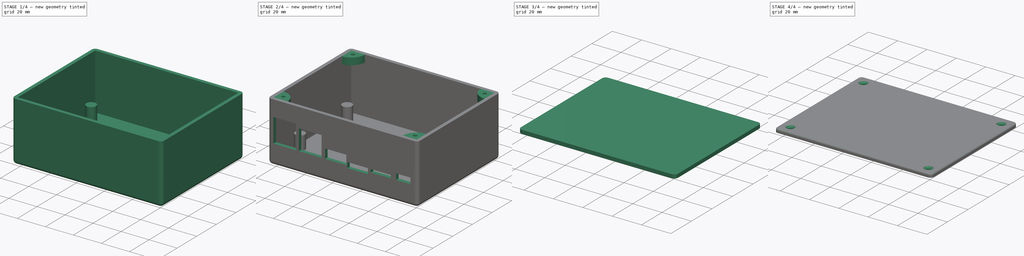
[diagram: build sequence overview — one tinted view per stage of 4, left to right]
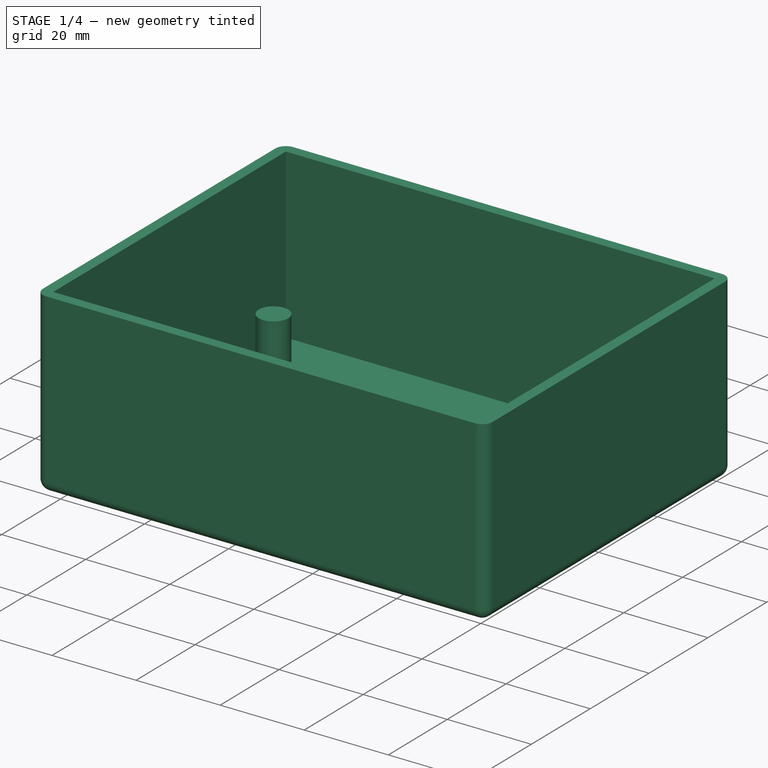
[diagram: stage 1 of 4 — iso view after this stage's code; geometry added in this stage tinted green]
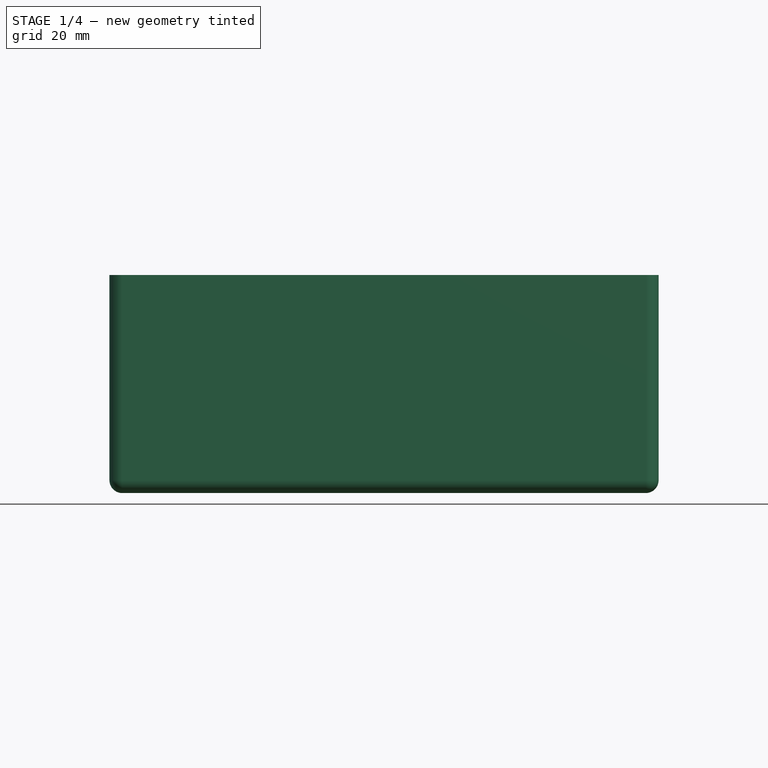
[diagram: stage 1 of 4 — front view after this stage's code; geometry added in this stage tinted green]
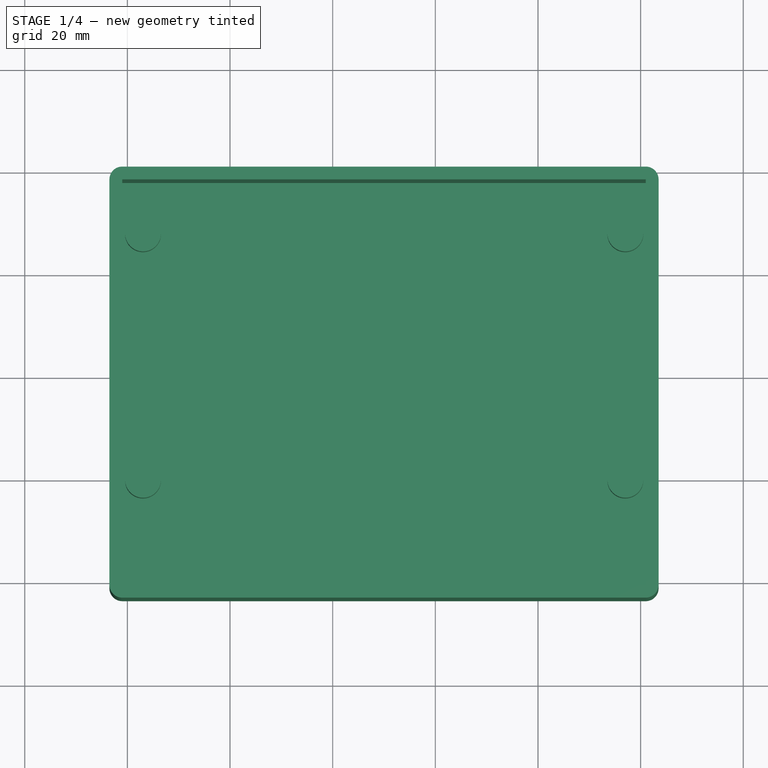
[diagram: stage 1 of 4 — top view after this stage's code; geometry added in this stage tinted green]
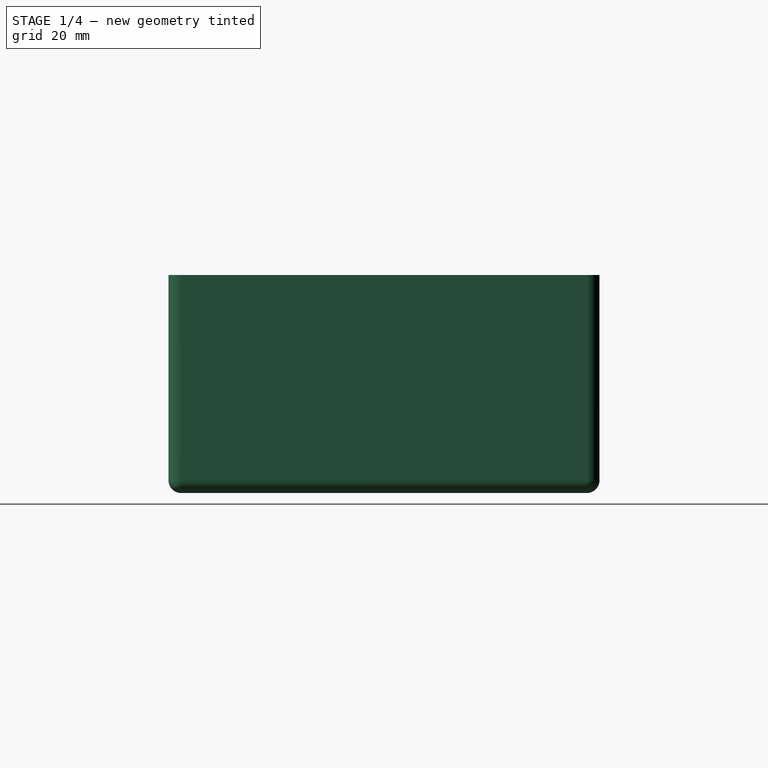
[diagram: stage 1 of 4 — right view after this stage's code; geometry added in this stage tinted green]
FCSTD DOCUMENT  (FreeCAD 0.21R33675 (Git))
Label: BPI-CM4-Baseboard case
License: All rights reserved
LicenseURL: http://en.wikipedia.org/wiki/All_rights_reserved
objects: Sketcher::SketchObject×10, PartDesign::Pad×5, PartDesign::Hole×4, PartDesign::SubShapeBinder×2, PartDesign::Body×2, App::Part×2, Part::Part2DObjectPython×1, Spreadsheet::Sheet×1, PartDesign::Thickness×1, PartDesign::Pocket×1, PartDesign::Fillet×1
note: 39 computed .brp shape members not serialized (recipe doc carries the construction recipe); baked Part::Feature solids carry a one-line shape summary decoded from their .brp

FEATURE [Part::Part2DObjectPython] Block  label="DXF"  # Draft 2D object (typed FeaturePython)
FEATURE [Sketcher::SketchObject] Sketch  label="sketch.bottom"
  ExternalGeometry = -> [Block]
  FullyConstrained = true
  MapMode = 5
  Support = -> [XY_Plane001]
  expr: Constraints[10] = Spreadsheet.border_spacing
  expr: Constraints[11] = Spreadsheet.border_spacing
  expr: Constraints[8] = Spreadsheet.border_spacing + 5 mm
  expr: Constraints[9] = Spreadsheet.border_spacing
  sketch-geometry (4):
    g0: LineSegment StartX=-1 StartY=77.9988 StartZ=0 EndX=101 EndY=77.9988 EndZ=0
    g1: LineSegment StartX=101 StartY=77.9988 StartZ=0 EndX=101 EndY=-1 EndZ=0
    g2: LineSegment StartX=101 StartY=-1 StartZ=0 EndX=-1 EndY=-1 EndZ=0
    g3: LineSegment StartX=-1 StartY=-1 StartZ=0 EndX=-1 EndY=77.9988 EndZ=0
  constraints (12):
    c: Coincident(g0,g1)
    c: Coincident(g1,g2)
    c: Coincident(g2,g3)
    c: Coincident(g3,g0)
    c: Horizontal(g0)
    c: Horizontal(g2)
    c: Vertical(g1)
    c: Vertical(g3)
    c: DistanceY(g-4,g0) = 6
    c: DistanceX(g-4,g0) = 1
    c: DistanceX(g0,g-3) = 1
    c: DistanceY(g1,g-5) = 1
FEATURE [Spreadsheet::Sheet] Spreadsheet
  cells = A1='Border spacing; B1(border_spacing)==1 mm; A2='Border thickness; B2(border_thickness)=2.5; A3='Bottom height; B3(bottom_height)==40 mm; A4='PCB thickness; B4(pcb_thick)==1.5 mm; A5='Post height; B5(post_height)==10 mm; A6='Printer tolerance; B6(printer_tolerance)==0.2 mm
FEATURE [PartDesign::Pad] Pad
  Direction = (0,0,1)
  Length = 40
  Length2 = 10
  Profile = -> Sketch
  ReferenceAxis = -> Sketch [N_Axis]
  Type = 0
  expr: Length = Spreadsheet.bottom_height
FEATURE [PartDesign::Thickness] Thickness
  Base = -> Pad [Face6]
  BaseFeature = -> Pad
  Intersection = false
  Join = 0
  Mode = 0
  SupportTransform = false
  Value = 2.5
  expr: Value = Spreadsheet.border_thickness
FEATURE [Sketcher::SketchObject] Sketch001  label="sketch.posts"
  ExternalGeometry = -> [Block]
  FullyConstrained = true
  MapMode = 5
  Support = -> [Thickness]
  sketch-geometry (4):
    g0: Circle CenterX=3.048 CenterY=68.0009 CenterZ=0 NormalX=0 NormalY=0 NormalZ=1 AngleXU=0 Radius=3.5
    g1: Circle CenterX=97.028 CenterY=68.0009 CenterZ=0 NormalX=0 NormalY=0 NormalZ=1 AngleXU=0 Radius=3.5
    g2: Circle CenterX=97.028 CenterY=20 CenterZ=0 NormalX=0 NormalY=0 NormalZ=1 AngleXU=0 Radius=3.5
    g3: Circle CenterX=3.048 CenterY=20 CenterZ=0 NormalX=0 NormalY=0 NormalZ=1 AngleXU=0 Radius=3.5
  constraints (8):
    c: Coincident(g0,g-3)
    c: Coincident(g1,g-4)
    c: Coincident(g2,g-5)
    c: Coincident(g3,g-6)
    c: Diameter(g0) = 7
    c: Equal(g1,g0)
    c: Equal(g2,g0)
    c: Equal(g3,g0)
FEATURE [PartDesign::Pad] Pad001
  BaseFeature = -> Thickness
  Direction = (0,0,1)
  Length = 10
  Length2 = 10
  Profile = -> Sketch001
  ReferenceAxis = -> Sketch001 [N_Axis]
  Type = 0
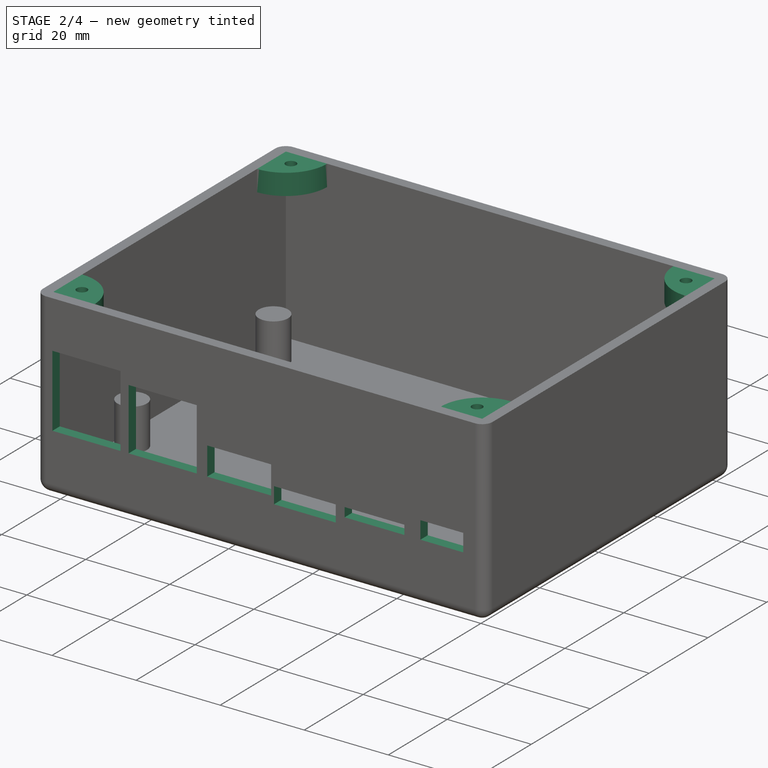
[diagram: stage 2 of 4 — iso view after this stage's code; geometry added in this stage tinted green]
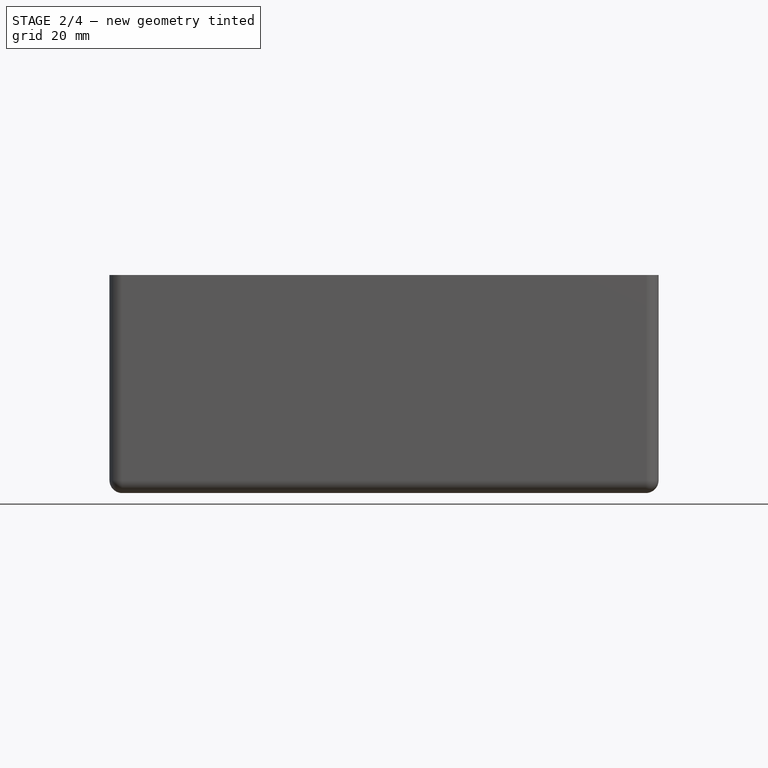
[diagram: stage 2 of 4 — front view after this stage's code; geometry added in this stage tinted green]
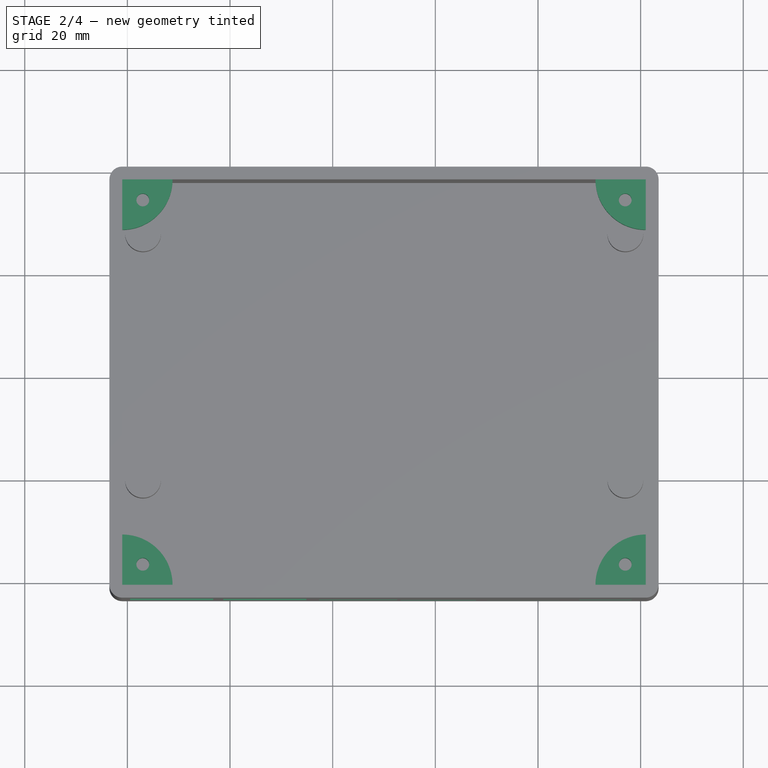
[diagram: stage 2 of 4 — top view after this stage's code; geometry added in this stage tinted green]
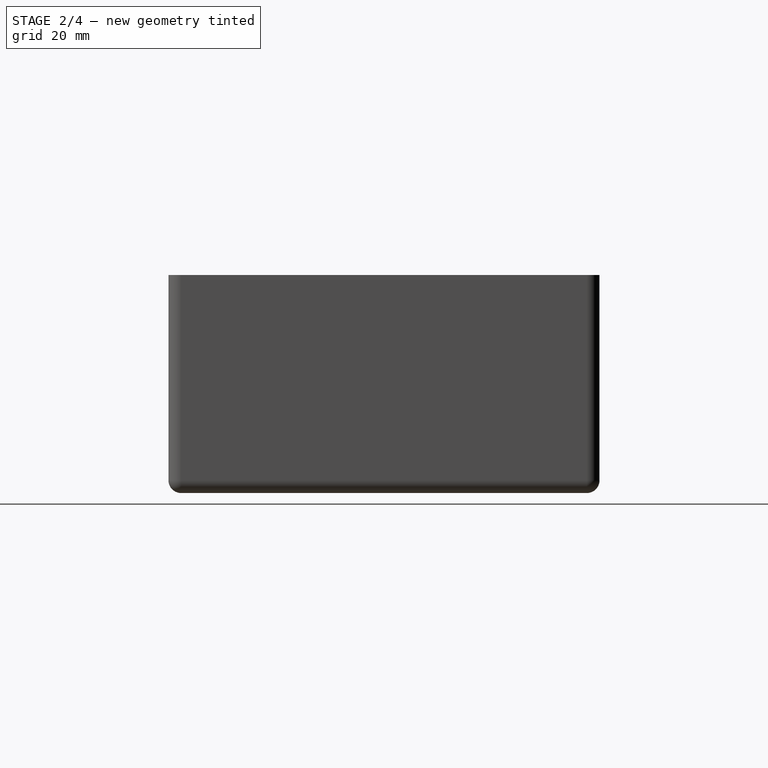
[diagram: stage 2 of 4 — right view after this stage's code; geometry added in this stage tinted green]
FEATURE [Sketcher::SketchObject] Sketch002  label="sketch.postholes"
  ExternalGeometry = -> [Sketch001]
  FullyConstrained = true
  MapMode = 5
  Placement = pos=(0,0,10) rot=(0,0,1;0rad)
  Support = -> [Pad001]
  sketch-geometry (4):
    g0: Circle CenterX=3.048 CenterY=68.0009 CenterZ=0 NormalX=0 NormalY=0 NormalZ=1 AngleXU=0 Radius=2.375
    g1: Circle CenterX=97.028 CenterY=68.0009 CenterZ=0 NormalX=0 NormalY=0 NormalZ=1 AngleXU=0 Radius=2.375
    g2: Circle CenterX=97.028 CenterY=20 CenterZ=0 NormalX=0 NormalY=0 NormalZ=1 AngleXU=0 Radius=2.375
    g3: Circle CenterX=3.048 CenterY=20 CenterZ=0 NormalX=0 NormalY=0 NormalZ=1 AngleXU=0 Radius=2.375
  constraints (8):
    c: Coincident(g0,g-3)
    c: Coincident(g1,g-4)
    c: Coincident(g2,g-5)
    c: Coincident(g3,g-6)
    c: Diameter(g0) = 4.75
    c: Equal(g1,g0)
    c: Equal(g2,g0)
    c: Equal(g3,g0)
FEATURE [Sketcher::SketchObject] Sketch003  label="sketch.interfaceholes"
  ExternalGeometry = -> [Block]
  FullyConstrained = true
  MapMode = 5
  Placement = pos=(0,-3.5,0) rot=(1,0,0;1.5708rad)
  expr: Constraints[15] = 16 mm + Spreadsheet.printer_tolerance
  expr: Constraints[23] = 15 mm + Spreadsheet.printer_tolerance
  expr: Constraints[31] = 14.5 mm + Spreadsheet.printer_tolerance
  expr: Constraints[32] = 3.5 mm + Spreadsheet.printer_tolerance * 2
  expr: Constraints[40] = 14 mm + Spreadsheet.printer_tolerance
  expr: Constraints[41] = 2 mm + Spreadsheet.printer_tolerance
  expr: Constraints[48] = 10 mm + Spreadsheet.printer_tolerance
  expr: Constraints[49] = 4 mm + Spreadsheet.printer_tolerance
  expr: Constraints[50] = Spreadsheet.post_height + Spreadsheet.pcb_thick
  expr: Constraints[51] = 17 mm + Spreadsheet.printer_tolerance
  expr: Constraints[52] = 14.5 mm + Spreadsheet.printer_tolerance
  expr: Constraints[53] = 6.5 mm + Spreadsheet.printer_tolerance
  expr: Constraints[54] = Spreadsheet.post_height + Spreadsheet.pcb_thick
  expr: Constraints[55] = Spreadsheet.post_height + Spreadsheet.pcb_thick
  expr: Constraints[56] = Spreadsheet.post_height - Spreadsheet.printer_tolerance
  expr: Constraints[57] = Spreadsheet.post_height + Spreadsheet.pcb_thick
  expr: Constraints[58] = Spreadsheet.post_height + Spreadsheet.pcb_thick
  expr: Constraints[7] = 16 mm + Spreadsheet.printer_tolerance
  sketch-geometry (42):
    g0: LineSegment StartX=0.536 StartY=28.7 StartZ=0 EndX=16.736 EndY=28.7 EndZ=0
    g1: LineSegment StartX=16.736 StartY=28.7 StartZ=0 EndX=16.736 EndY=11.5 EndZ=0
    g2: LineSegment StartX=0.536 StartY=11.5 StartZ=0 EndX=0.536 EndY=28.7 EndZ=0
    g3: LineSegment StartX=18.6716 StartY=26.2 StartZ=0 EndX=34.8716 EndY=26.2 EndZ=0
    g4: LineSegment StartX=34.8716 StartY=26.2 StartZ=0 EndX=34.8716 EndY=11.5 EndZ=0
    g5: LineSegment StartX=18.6716 StartY=11.5 StartZ=0 EndX=18.6716 EndY=26.2 EndZ=0
    g6: LineSegment StartX=37.358 StartY=18.2 StartZ=0 EndX=52.558 EndY=18.2 EndZ=0
    g7: LineSegment StartX=52.558 StartY=18.2 StartZ=0 EndX=52.558 EndY=11.5 EndZ=0
    g8: LineSegment StartX=37.358 StartY=11.5 StartZ=0 EndX=37.358 EndY=18.2 EndZ=0
    g9: LineSegment StartX=53.2379 StartY=13.7 StartZ=0 EndX=67.9379 EndY=13.7 EndZ=0
    g10: LineSegment StartX=67.9379 StartY=13.7 StartZ=0 EndX=67.9379 EndY=9.8 EndZ=0
    g11: LineSegment StartX=53.2379 StartY=9.8 StartZ=0 EndX=53.2379 EndY=13.7 EndZ=0
    g12: LineSegment StartX=70.055 StartY=13.7 StartZ=0 EndX=84.255 EndY=13.7 EndZ=0
    g13: LineSegment StartX=84.255 StartY=13.7 StartZ=0 EndX=84.255 EndY=11.5 EndZ=0
    g14: LineSegment StartX=70.055 StartY=11.5 StartZ=0 EndX=70.055 EndY=13.7 EndZ=0
    g15: LineSegment StartX=88.0672 StartY=15.7 StartZ=0 EndX=98.2672 EndY=15.7 EndZ=0
    g16: LineSegment StartX=98.2672 StartY=15.7 StartZ=0 EndX=98.2672 EndY=11.5 EndZ=0
    g17: LineSegment StartX=88.0672 StartY=11.5 StartZ=0 EndX=88.0672 EndY=15.7 EndZ=0
    g18: LineSegment StartX=89.3966 StartY=2e-15 StartZ=0 EndX=96.9378 EndY=2e-15 EndZ=0
    g19: LineSegment StartX=96.9378 StartY=2e-15 StartZ=0 EndX=93.1672 EndY=2e-15 EndZ=0
    g20: LineSegment StartX=98.2672 StartY=11.5 StartZ=0 EndX=93.1672 EndY=11.5 EndZ=0
    g21: LineSegment StartX=93.1672 StartY=11.5 StartZ=0 EndX=88.0672 EndY=11.5 EndZ=0
    g22: LineSegment StartX=73.6625 StartY=1.6e-15 StartZ=0 EndX=77.155 EndY=1.6e-15 EndZ=0
    g23: LineSegment StartX=77.155 StartY=1.6e-15 StartZ=0 EndX=80.6475 EndY=1.6e-15 EndZ=0
    g24: LineSegment StartX=84.255 StartY=11.5 StartZ=0 EndX=77.155 EndY=11.5 EndZ=0
    g25: LineSegment StartX=77.155 StartY=11.5 StartZ=0 EndX=70.055 EndY=11.5 EndZ=0
    g26: LineSegment StartX=56.6877 StartY=9e-16 StartZ=0 EndX=60.5879 EndY=9e-16 EndZ=0
    g27: LineSegment StartX=60.5879 StartY=9e-16 StartZ=0 EndX=64.4881 EndY=9e-16 EndZ=0
    g28: LineSegment StartX=67.9379 StartY=9.8 StartZ=0 EndX=60.5879 EndY=9.8 EndZ=0
    g29: LineSegment StartX=60.5879 StartY=9.8 StartZ=0 EndX=53.2379 EndY=9.8 EndZ=0
    g30: LineSegment StartX=38.4594 StartY=2.7e-15 StartZ=0 EndX=44.958 EndY=2.7e-15 EndZ=0
    g31: LineSegment StartX=44.958 StartY=2.7e-15 StartZ=0 EndX=51.4566 EndY=2.7e-15 EndZ=0
    g32: LineSegment StartX=52.558 StartY=11.5 StartZ=0 EndX=44.958 EndY=11.5 EndZ=0
    g33: LineSegment StartX=44.958 StartY=11.5 StartZ=0 EndX=37.358 EndY=11.5 EndZ=0
    g34: LineSegment StartX=20.3454 StartY=0 StartZ=0 EndX=26.7716 EndY=3.3e-15 EndZ=0
    g35: LineSegment StartX=26.7716 StartY=3.3e-15 StartZ=0 EndX=33.1978 EndY=3.3e-15 EndZ=0
    g36: LineSegment StartX=34.8716 StartY=11.5 StartZ=0 EndX=26.7716 EndY=11.5 EndZ=0
    g37: LineSegment StartX=26.7716 StartY=11.5 StartZ=0 EndX=18.6716 EndY=11.5 EndZ=0
    g38: LineSegment StartX=3.76555 StartY=3.8e-15 StartZ=0 EndX=8.636 EndY=3.8e-15 EndZ=0
    g39: LineSegment StartX=8.636 StartY=3.8e-15 StartZ=0 EndX=13.5065 EndY=3.8e-15 EndZ=0
    g40: LineSegment StartX=16.736 StartY=11.5 StartZ=0 EndX=8.636 EndY=11.5 EndZ=0
    g41: LineSegment StartX=8.636 StartY=11.5 StartZ=0 EndX=0.536 EndY=11.5 EndZ=0
  constraints (108):
    c: Coincident(g0,g1)
    c: Coincident(g1,g40)
    c: Coincident(g41,g2)
    c: Coincident(g2,g0)
    c: Horizontal(g0)
    c: Vertical(g1)
    c: Vertical(g2)
    c: DistanceX(g0,g0) = 16.2
    c: Coincident(g3,g4)
    c: Coincident(g4,g36)
    c: Coincident(g37,g5)
    c: Coincident(g5,g3)
    c: Horizontal(g3)
    c: Vertical(g4)
    c: Vertical(g5)
    c: DistanceX(g3,g3) = 16.2
    c: Coincident(g6,g7)
    c: Coincident(g7,g32)
    c: Coincident(g33,g8)
    c: Coincident(g8,g6)
    c: Horizontal(g6)
    c: Vertical(g7)
    c: Vertical(g8)
    c: DistanceX(g6,g6) = 15.2
    c: Coincident(g9,g10)
    c: Coincident(g10,g28)
    c: Coincident(g29,g11)
    c: Coincident(g11,g9)
    c: Horizontal(g9)
    c: Vertical(g10)
    c: Vertical(g11)
    c: DistanceX(g9,g9) = 14.7
    c: DistanceY(g10,g10) = 3.9
    c: Coincident(g12,g13)
    c: Coincident(g13,g24)
    c: Coincident(g25,g14)
    c: Coincident(g14,g12)
    c: Horizontal(g12)
    c: Vertical(g13)
    c: Vertical(g14)
    c: DistanceX(g12,g12) = 14.2
    c: DistanceY(g13,g13) = 2.2
    c: Coincident(g15,g16)
    c: Coincident(g21,g17)
    c: Coincident(g17,g15)
    c: Horizontal(g15)
    c: Vertical(g16)
    c: Vertical(g17)
    c: DistanceX(g15,g15) = 10.2
    c: DistanceY(g16,g16) = 4.2
    c: DistanceY(g-3,g41) = 11.5
    c: DistanceY(g1,g1) = 17.2
    c: DistanceY(g4,g4) = 14.7
    c: DistanceY(g8,g8) = 6.7
    c: DistanceY(g-3,g37) = 11.5
    c: DistanceY(g-3,g33) = 11.5
    c: DistanceY(g-3,g29) = 9.8
    c: DistanceY(g-3,g25) = 11.5
    c: DistanceY(g-3,g21) = 11.5
    c: Coincident(g18,g19)
    c: Symmetric(g18,g18,g19)
    c: Coincident(g-16,g18)
    c: Coincident(g18,g-15)
    c: Coincident(g20,g21)
    c: Symmetric(g20,g17,g20)
    c: Coincident(g16,g20)
    c: Horizontal(g20)
    c: Vertical(g19,g20)
    c: Coincident(g-13,g22)
    c: Coincident(g22,g23)
    c: Coincident(g23,g-14)
    c: Symmetric(g23,g22,g22)
    c: Coincident(g24,g25)
    c: Horizontal(g24)
    c: Symmetric(g13,g14,g24)
    c: Vertical(g24,g22)
    c: Coincident(g-11,g26)
    c: Coincident(g26,g27)
    c: Coincident(g27,g-12)
    c: Symmetric(g27,g26,g26)
    c: Coincident(g28,g29)
    c: Horizontal(g28)
    c: Symmetric(g10,g11,g28)
    c: Vertical(g28,g26)
    c: Coincident(g-9,g30)
    c: Coincident(g30,g31)
    c: Symmetric(g31,g30,g30)
    c: Coincident(g31,g-10)
    c: Coincident(g32,g33)
    c: Horizontal(g32)
    c: Symmetric(g7,g8,g32)
    c: Vertical(g32,g30)
    c: Coincident(g-7,g34)
    c: Coincident(g34,g35)
    c: Coincident(g35,g-8)
    c: Symmetric(g35,g-7,g34)
    c: Coincident(g36,g37)
    c: Horizontal(g36)
    c: Symmetric(g4,g5,g36)
    c: Vertical(g36,g34)
    c: Coincident(g-5,g38)
    c: Coincident(g38,g39)
    c: Coincident(g39,g-6)
    c: Symmetric(g39,g38,g38)
    c: Coincident(g40,g41)
    c: Horizontal(g40)
    c: Symmetric(g1,g2,g40)
    c: Vertical(g40,g38)
FEATURE [PartDesign::Pocket] Pocket001
  BaseFeature = -> Pad001
  Direction = (0,1,-2e-16)
  Length = 2.5
  Length2 = 5
  Profile = -> Sketch003
  ReferenceAxis = -> Sketch003 [N_Axis]
  Type = 0
  expr: Length = Spreadsheet.border_thickness
FEATURE [Sketcher::SketchObject] Sketch004
  ExternalGeometry = -> [Pocket001]
  FullyConstrained = true
  MapMode = 5
  Placement = pos=(0,0,40) rot=(0,0,1;0rad)
  Support = -> [Pocket001]
  expr: Constraints[10] = 10 mm - Spreadsheet.printer_tolerance
  expr: Constraints[19] = 10 mm - Spreadsheet.printer_tolerance
  expr: Constraints[26] = 10 mm - Spreadsheet.printer_tolerance
  expr: Constraints[2] = 10 mm - Spreadsheet.printer_tolerance
  sketch-geometry (12):
    g0: LineSegment StartX=-1 StartY=77.9988 StartZ=0 EndX=8.8 EndY=77.9988 EndZ=0
    g1: ArcOfCircle CenterX=-1 CenterY=77.9988 CenterZ=0 NormalX=0 NormalY=0 NormalZ=1 AngleXU=0 Radius=9.8 StartAngle=4.71239 EndAngle=6.28319
    g2: LineSegment StartX=-1 StartY=68.1988 StartZ=0 EndX=-1 EndY=77.9988 EndZ=0
    g3: LineSegment StartX=-1 StartY=-1 StartZ=0 EndX=-1 EndY=8.8 EndZ=0
    g4: ArcOfCircle CenterX=-1 CenterY=-1 CenterZ=0 NormalX=0 NormalY=0 NormalZ=1 AngleXU=0 Radius=9.8 StartAngle=0 EndAngle=1.5708
    g5: LineSegment StartX=8.8 StartY=-1 StartZ=0 EndX=-1 EndY=-1 EndZ=0
    g6: LineSegment StartX=91.1998 StartY=77.9988 StartZ=0 EndX=101 EndY=77.9988 EndZ=0
    g7: LineSegment StartX=101 StartY=77.9988 StartZ=0 EndX=101 EndY=68.1988 EndZ=0
    g8: ArcOfCircle CenterX=101 CenterY=77.9988 CenterZ=0 NormalX=0 NormalY=0 NormalZ=1 AngleXU=0 Radius=9.8 StartAngle=3.14159 EndAngle=4.71239
    g9: LineSegment StartX=91.1998 StartY=-1 StartZ=0 EndX=101 EndY=-1 EndZ=0
    g10: LineSegment StartX=101 StartY=-1 StartZ=0 EndX=101 EndY=8.8 EndZ=0
    g11: ArcOfCircle CenterX=101 CenterY=-1 CenterZ=0 NormalX=0 NormalY=0 NormalZ=1 AngleXU=0 Radius=9.8 StartAngle=1.5708 EndAngle=3.14159
  constraints (32):
    c: PointOnObject(g1,g-3)
    c: Coincident(g2,g0)
    c: DistanceX(g0,g0) = 9.8
    c: Coincident(g0,g-4)
    c: Coincident(g1,g0)
    c: Coincident(g0,g1)
    c: Coincident(g2,g1)
    c: Horizontal(g0)
    c: PointOnObject(g4,g-6)
    c: Coincident(g5,g3)
    c: DistanceX(g5,g5) = 9.8
    c: Coincident(g4,g3)
    c: Coincident(g4,g3)
    c: Coincident(g5,g4)
    c: Vertical(g3)
    c: Coincident(g3,g-6)
    c: Horizontal(g6)
    c: Coincident(g6,g7)
    c: Coincident(g8,g6)
    c: DistanceX(g6,g6) = 9.8
    c: Coincident(g6,g-5)
    c: Vertical(g7)
    c: Coincident(g8,g6)
    c: Coincident(g8,g7)
    c: Coincident(g9,g10)
    c: Coincident(g11,g9)
    c: DistanceX(g9,g9) = 9.8
    c: Coincident(g11,g9)
    c: Coincident(g11,g10)
    c: Coincident(g9,g-6)
    c: Vertical(g10)
    c: Horizontal(g9)
FEATURE [PartDesign::Pad] Pad002
  BaseFeature = -> Pocket001
  Direction = (0,0,1)
  Length = 5
  Length2 = 10
  Profile = -> Sketch004
  ReferenceAxis = -> Sketch004 [N_Axis]
  Reversed = true
  Type = 0
FEATURE [Sketcher::SketchObject] Sketch005  label="sketch.screwholes-top"
  ExternalGeometry = -> [Pad002]
  FullyConstrained = true
  MapMode = 5
  Placement = pos=(0,0,40) rot=(0,0,1;0rad)
  Support = -> [Pad002]
  sketch-geometry (4):
    g0: Circle CenterX=3 CenterY=73.9988 CenterZ=0 NormalX=0 NormalY=0 NormalZ=1 AngleXU=0 Radius=2
    g1: Circle CenterX=96.9998 CenterY=73.9988 CenterZ=0 NormalX=0 NormalY=0 NormalZ=1 AngleXU=0 Radius=2
    g2: Circle CenterX=96.9998 CenterY=3 CenterZ=0 NormalX=0 NormalY=0 NormalZ=1 AngleXU=0 Radius=2
    g3: Circle CenterX=3 CenterY=3 CenterZ=0 NormalX=0 NormalY=0 NormalZ=1 AngleXU=0 Radius=2
  constraints (12):
    c: DistanceX(g-4,g0) = 4
    c: DistanceY(g0,g-4) = 4
    c: DistanceY(g1,g-6) = 4
    c: DistanceY(g-8,g2) = 4
    c: DistanceY(g-10,g3) = 4
    c: DistanceX(g1,g-6) = 4
    c: DistanceX(g2,g-8) = 4
    c: DistanceX(g-10,g3) = 4
    c: Diameter(g0) = 4
    c: Equal(g1,g0)
    c: Equal(g2,g0)
    c: Equal(g3,g0)
FEATURE [PartDesign::Hole] Hole
  BaseFeature = -> Pad002
  CustomThreadClearance = 0
  Depth = 10
  DepthType = 0
  Diameter = 2.5
  DrillForDepth = false
  DrillPoint = 1
  DrillPointAngle = 118
  HoleCutCountersinkAngle = 90
  HoleCutCustomValues = false
  HoleCutDepth = 0
  HoleCutDiameter = 6.1
  HoleCutType = 0
  ModelThread = false
  Profile = -> Sketch005
  Tapered = false
  TaperedAngle = 90
  ThreadClass = 0
  ThreadDepth = 10
  ThreadDepthType = 0
  ThreadDirection = 0
  ThreadFit = 0
  ThreadSize = 9
  ThreadType = 1
  Threaded = true
  UseCustomThreadClearance = false
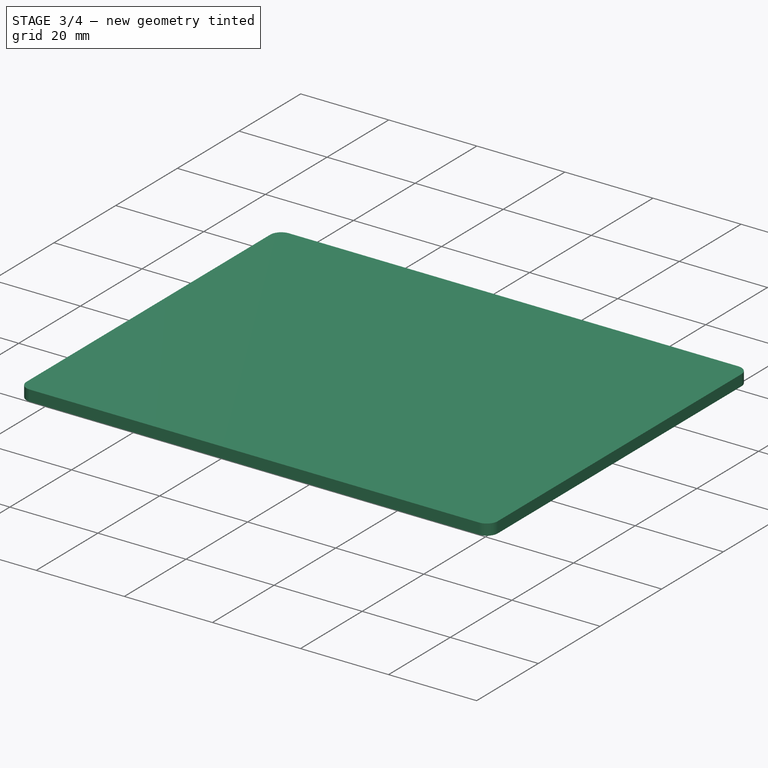
[diagram: stage 3 of 4 — iso view after this stage's code; geometry added in this stage tinted green]
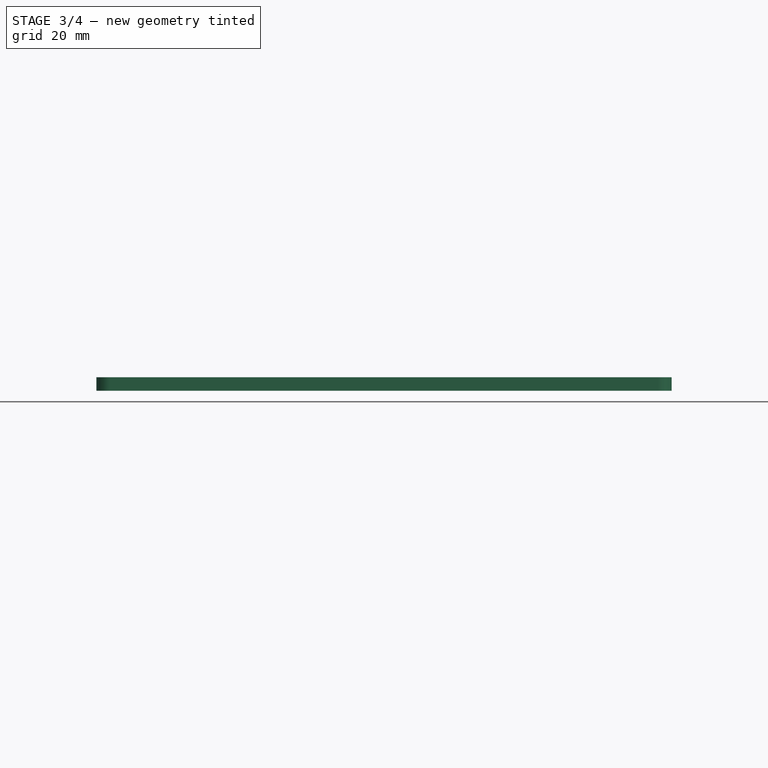
[diagram: stage 3 of 4 — front view after this stage's code; geometry added in this stage tinted green]
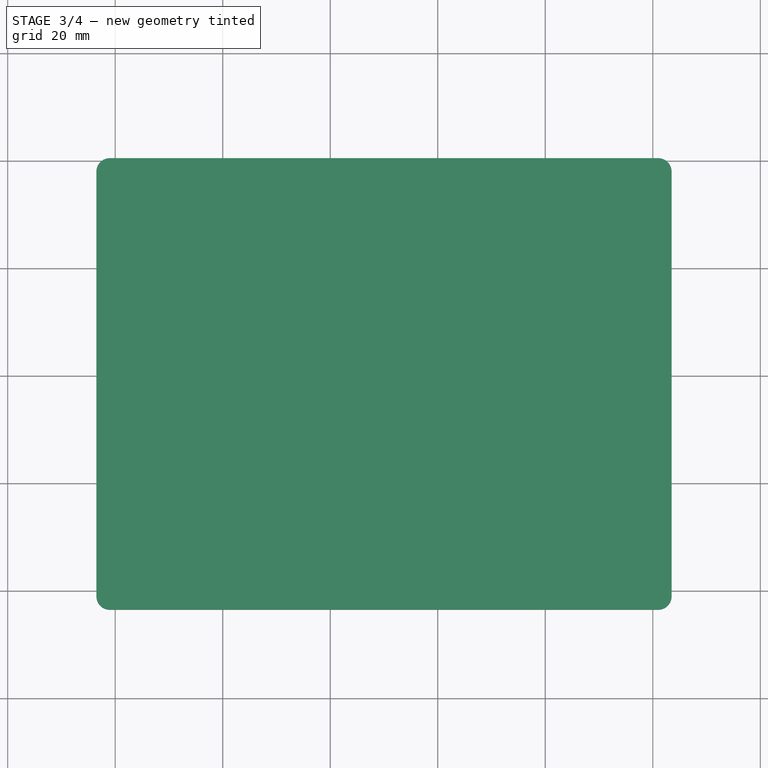
[diagram: stage 3 of 4 — top view after this stage's code; geometry added in this stage tinted green]
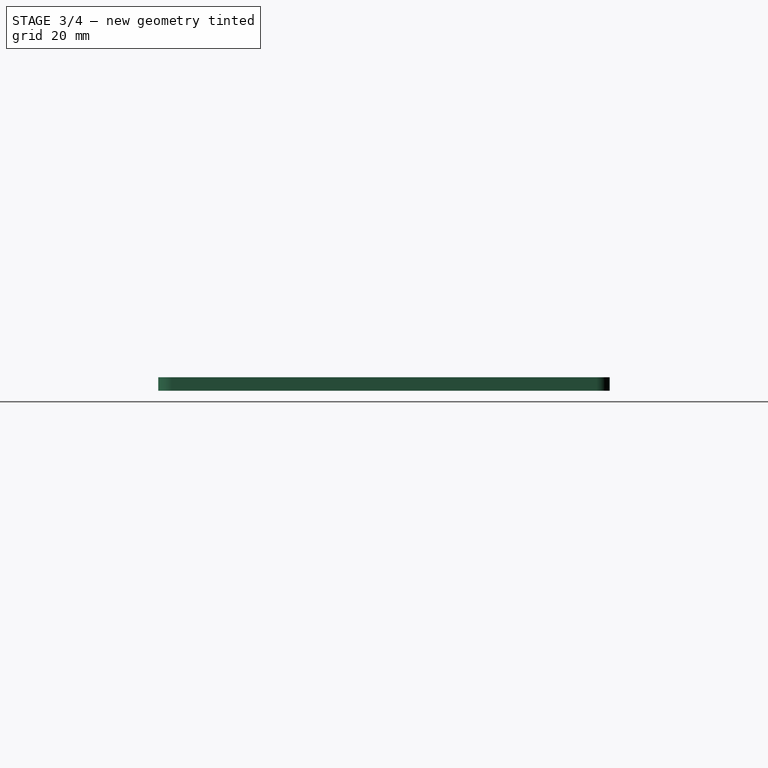
[diagram: stage 3 of 4 — right view after this stage's code; geometry added in this stage tinted green]
FEATURE [Sketcher::SketchObject] Sketch009  label="sketch.antennaholes"
  ExternalGeometry = -> [Hole]
  FullyConstrained = true
  MapMode = 5
  Placement = pos=(0,80.4988,0) rot=(0,0.707107,0.707107;3.14159rad)
  Support = -> [Hole]
  sketch-geometry (11):
    g0: LineSegment StartX=1 StartY=0 StartZ=0 EndX=-49.9999 EndY=0 EndZ=0
    g1: LineSegment StartX=-49.9999 StartY=0 StartZ=0 EndX=-101 EndY=0 EndZ=0
    g2: LineSegment StartX=-101 StartY=0 StartZ=0 EndX=-101 EndY=20 EndZ=0
    g3: LineSegment StartX=-101 StartY=20 StartZ=0 EndX=-101 EndY=40 EndZ=0
    g4: LineSegment StartX=-101 StartY=40 StartZ=0 EndX=-49.9999 EndY=40 EndZ=0
    g5: LineSegment StartX=-49.9999 StartY=40 StartZ=0 EndX=1 EndY=40 EndZ=0
    g6: LineSegment StartX=1 StartY=40 StartZ=0 EndX=1 EndY=20 EndZ=0
    g7: LineSegment StartX=1 StartY=20 StartZ=0 EndX=1 EndY=0 EndZ=0
    g8: Circle CenterX=-69.9999 CenterY=20 CenterZ=0 NormalX=0 NormalY=0 NormalZ=1 AngleXU=0 Radius=4
    g9: Circle CenterX=-29.9999 CenterY=20 CenterZ=0 NormalX=0 NormalY=0 NormalZ=1 AngleXU=0 Radius=4
    g10: LineSegment StartX=-49.9999 StartY=0 StartZ=0 EndX=-49.9999 EndY=40 EndZ=0
  constraints (23):
    c: Coincident(g0,g1)
    c: Coincident(g5,g6)
    c: Coincident(g7,g0)
    c: Symmetric(g1,g0,g0)
    c: Coincident(g6,g7)
    c: Symmetric(g5,g0,g6)
    c: Coincident(g10,g0)
    c: Symmetric(g9,g8,g10)
    c: Horizontal(g8,g6)
    c: DistanceX(g8,g9) = 40
    c: Diameter(g8) = 8
    c: Equal(g9,g8)
    c: Coincident(g2,g1)
    c: Coincident(g3,g2)
    c: Coincident(g3,g4)
    c: Symmetric(g3,g1,g2)
    c: Coincident(g5,g10)
    c: Coincident(g4,g5)
    c: Symmetric(g5,g3,g4)
    c: Coincident(g5,g-6)
    c: Coincident(g0,g-6)
    c: Coincident(g3,g-4)
    c: Coincident(g1,g-5)
FEATURE [PartDesign::Hole] Hole002
  BaseFeature = -> Hole
  CustomThreadClearance = 0
  Depth = 25
  DepthType = 0
  Diameter = 6.9
  DrillForDepth = false
  DrillPoint = 1
  DrillPointAngle = 118
  HoleCutCountersinkAngle = 90
  HoleCutCustomValues = false
  HoleCutDepth = 0
  HoleCutDiameter = 7.35
  HoleCutType = 0
  ModelThread = false
  Profile = -> Sketch009
  Tapered = false
  TaperedAngle = 90
  ThreadClass = 0
  ThreadDepth = 25
  ThreadDepthType = 0
  ThreadDirection = 1
  ThreadFit = 0
  ThreadSize = 11
  ThreadType = 4
  Threaded = true
  UseCustomThreadClearance = false
FEATURE [PartDesign::SubShapeBinder] Binder001
  BindCopyOnChange = 0
  BindMode = 0
  ClaimChildren = false
  Context = -> Part001 [Body001.Binder001.]
  Fuse = false
  MakeFace = true
  OffsetFill = false
  OffsetIntersection = false
  OffsetJoinType = 0
  OffsetOpenResult = false
  PartialLoad = false
  Relative = true
  Support = -> [Part[Body.Sketch005.Edge2,Body.Sketch005.Edge1,Body.Sketch005.Edge4,Body.Sketch005.Edge3]]
  _Version = 2
FEATURE [PartDesign::SubShapeBinder] Binder
  BindCopyOnChange = 0
  BindMode = 0
  ClaimChildren = false
  Context = -> Part001 [Body001.Binder.]
  Fuse = false
  MakeFace = true
  OffsetFill = false
  OffsetIntersection = false
  OffsetJoinType = 0
  OffsetOpenResult = false
  PartialLoad = false
  Relative = true
  Support = -> [Part[Body.Thickness.Edge15,Body.Thickness.Edge16,Body.Thickness.Edge17,Body.Thickness.Edge18,Body.Thickness.Edge19,Body.Thickness.Edge20,Body.Thickness.Edge13,Body.Thickness.Edge14]]
  _Version = 2
FEATURE [Sketcher::SketchObject] Sketch006
  AttachmentOffset = pos=(0,0,70) rot=(0,0,1;0rad)
  ExternalGeometry = -> [Binder]
  FullyConstrained = true
  MapMode = 5
  Placement = pos=(0,0,70) rot=(0,0,1;0rad)
  Support = -> [XY_Plane003]
  sketch-geometry (8):
    g0: LineSegment StartX=-1 StartY=80.4988 StartZ=0 EndX=101 EndY=80.4988 EndZ=0
    g1: ArcOfCircle CenterX=101 CenterY=77.9988 CenterZ=0 NormalX=0 NormalY=0 NormalZ=1 AngleXU=0 Radius=2.5 StartAngle=-1.8e-15 EndAngle=1.5708
    g2: LineSegment StartX=103.5 StartY=77.9988 StartZ=0 EndX=103.5 EndY=-1 EndZ=0
    g3: ArcOfCircle CenterX=101 CenterY=-1 CenterZ=0 NormalX=0 NormalY=0 NormalZ=1 AngleXU=0 Radius=2.5 StartAngle=4.71239 EndAngle=6.28319
    g4: LineSegment StartX=101 StartY=-3.5 StartZ=0 EndX=-1 EndY=-3.5 EndZ=0
    g5: ArcOfCircle CenterX=-1 CenterY=-1 CenterZ=0 NormalX=0 NormalY=0 NormalZ=1 AngleXU=0 Radius=2.5 StartAngle=3.14159 EndAngle=4.71239
    g6: LineSegment StartX=-3.5 StartY=-1 StartZ=0 EndX=-3.5 EndY=77.9988 EndZ=0
    g7: ArcOfCircle CenterX=-1 CenterY=77.9988 CenterZ=0 NormalX=0 NormalY=0 NormalZ=1 AngleXU=0 Radius=2.5 StartAngle=1.5708 EndAngle=3.14159
  constraints (20):
    c: Coincident(g0,g1)
    c: Coincident(g0,g-10)
    c: Coincident(g1,g2)
    c: Coincident(g1,g-10)
    c: Equal(g-10,g1)
    c: Equal(g3,g-8)
    c: Coincident(g-9,g3)
    c: Coincident(g-8,g3)
    c: Coincident(g2,g3)
    c: Coincident(g4,g3)
    c: Coincident(g4,g-7)
    c: Coincident(g5,g4)
    c: Coincident(g5,g6)
    c: Coincident(g5,g-6)
    c: Equal(g5,g-6)
    c: Equal(g7,g-4)
    c: Coincident(g6,g7)
    c: Coincident(g7,g0)
    c: Coincident(g6,g-5)
    c: Coincident(g0,g-4)
FEATURE [PartDesign::Pad] Pad003
  Direction = (0,0,1)
  Length = 2.5
  Length2 = 10
  Profile = -> Sketch006
  ReferenceAxis = -> Sketch006 [N_Axis]
  Reversed = true
  Type = 0
  expr: Length = Spreadsheet.border_thickness
FEATURE [PartDesign::Body] Body001  label="body.lid"
  Group = -> [Sketch006,Sketch007,Pad003,Pad004,Sketch008,Hole001,Binder001,Fillet,Binder]
  Origin = -> Origin003
  Tip = -> Fillet
FEATURE [App::Part] Part001  label="Lid"
  Group = -> [Body001]
  Origin = -> Origin002
FEATURE [PartDesign::Hole] Hole003
  BaseFeature = -> Hole002
  CustomThreadClearance = 0
  Depth = 8
  DepthType = 0
  Diameter = 2.5
  DrillForDepth = false
  DrillPoint = 1
  DrillPointAngle = 118
  HoleCutCountersinkAngle = 90
  HoleCutCustomValues = false
  HoleCutDepth = 0
  HoleCutDiameter = 6.1
  HoleCutType = 0
  ModelThread = false
  Profile = -> Sketch002
  Tapered = false
  TaperedAngle = 90
  ThreadClass = 0
  ThreadDepth = 8
  ThreadDepthType = 0
  ThreadDirection = 0
  ThreadFit = 0
  ThreadSize = 9
  ThreadType = 1
  Threaded = true
  UseCustomThreadClearance = false
FEATURE [PartDesign::Body] Body  label="body.bottom"
  Group = -> [Sketch,Block,Pad,Thickness,Sketch001,Pad001,Sketch002,Sketch003,Pocket001,Sketch004,Pad002,Sketch005,Hole,Sketch009,Hole002,Hole003]
  Origin = -> Origin001
  Tip = -> Hole003
FEATURE [App::Part] Part  label="Bottom"
  Group = -> [Body]
  Origin = -> Origin
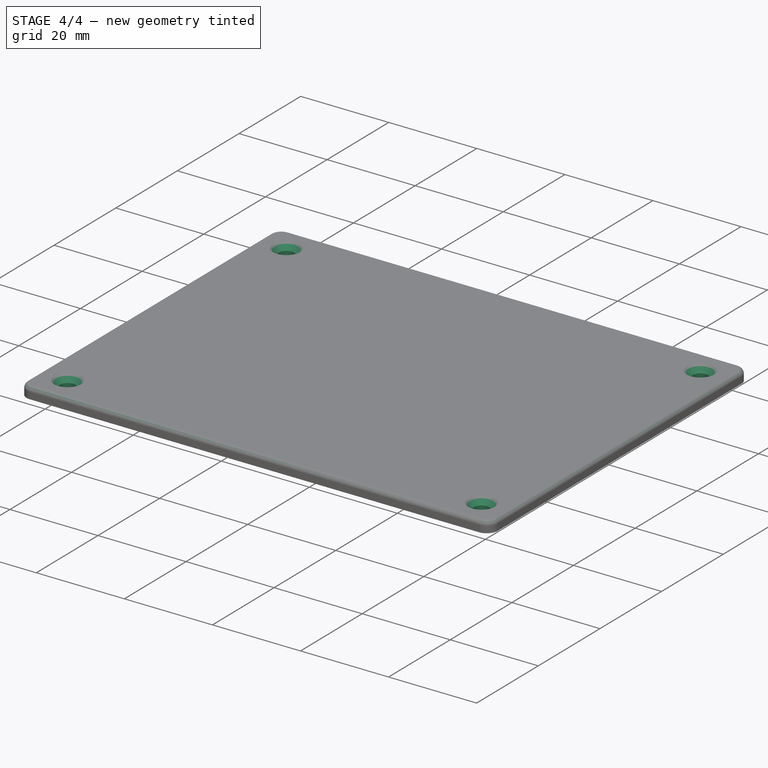
[diagram: stage 4 of 4 — iso view after this stage's code; geometry added in this stage tinted green]
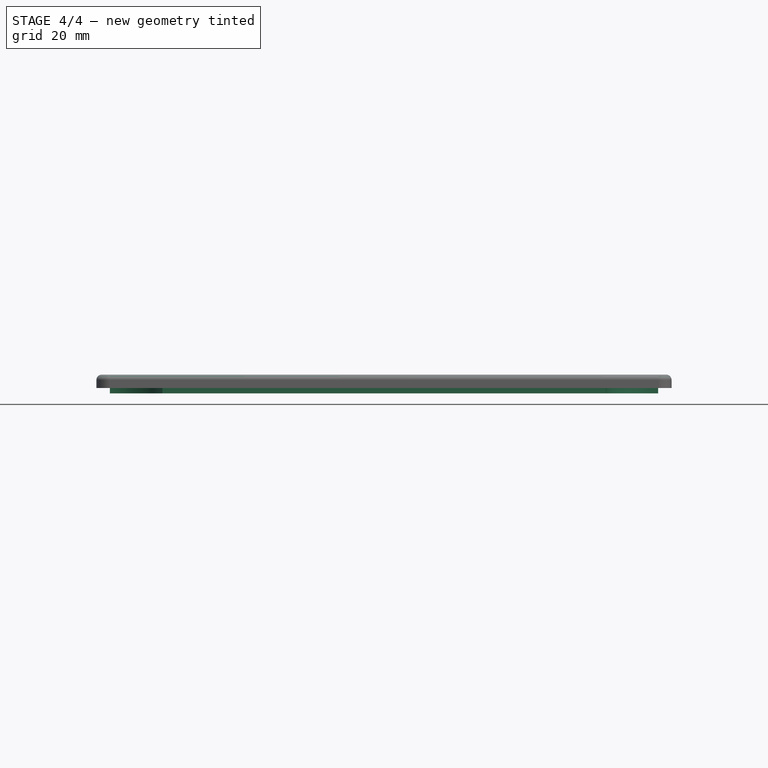
[diagram: stage 4 of 4 — front view after this stage's code; geometry added in this stage tinted green]
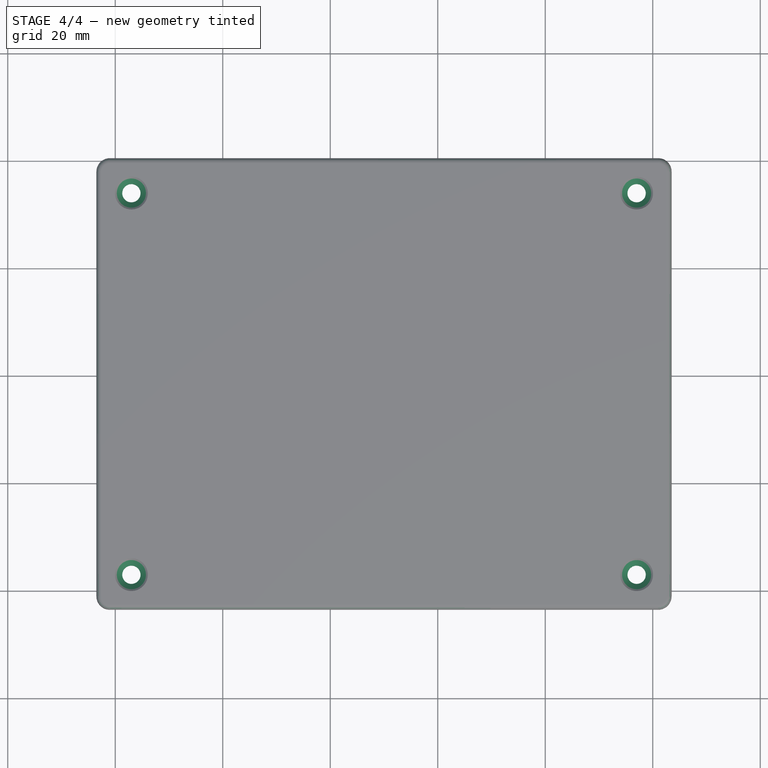
[diagram: stage 4 of 4 — top view after this stage's code; geometry added in this stage tinted green]
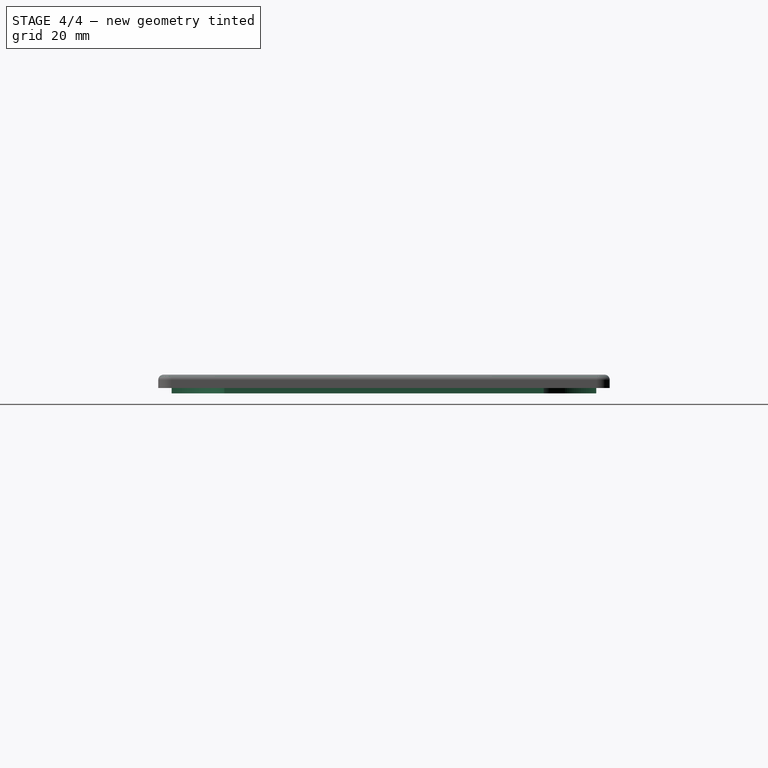
[diagram: stage 4 of 4 — right view after this stage's code; geometry added in this stage tinted green]
FEATURE [Sketcher::SketchObject] Sketch007
  ExternalGeometry = -> [Binder]
  FullyConstrained = true
  MapMode = 5
  Placement = pos=(0,0,70) rot=(0,0,1;0rad)
  Support = -> [Pad003]
  sketch-geometry (8):
    g0: LineSegment StartX=8.8 StartY=77.9988 StartZ=0 EndX=91.1998 EndY=77.9988 EndZ=0
    g1: ArcOfCircle CenterX=101 CenterY=77.9988 CenterZ=0 NormalX=0 NormalY=0 NormalZ=1 AngleXU=0 Radius=9.8 StartAngle=3.14159 EndAngle=4.71239
    g2: LineSegment StartX=101 StartY=68.1988 StartZ=0 EndX=101 EndY=8.8 EndZ=0
    g3: ArcOfCircle CenterX=101 CenterY=-1 CenterZ=0 NormalX=0 NormalY=0 NormalZ=1 AngleXU=0 Radius=9.8 StartAngle=1.5708 EndAngle=3.14159
    g4: LineSegment StartX=91.1998 StartY=-1 StartZ=0 EndX=8.8 EndY=-1 EndZ=0
    g5: ArcOfCircle CenterX=-1 CenterY=-1 CenterZ=0 NormalX=0 NormalY=0 NormalZ=1 AngleXU=0 Radius=9.8 StartAngle=0 EndAngle=1.5708
    g6: LineSegment StartX=-1 StartY=8.8 StartZ=0 EndX=-1 EndY=68.1988 EndZ=0
    g7: ArcOfCircle CenterX=-1 CenterY=77.9988 CenterZ=0 NormalX=0 NormalY=0 NormalZ=1 AngleXU=0 Radius=9.8 StartAngle=4.71239 EndAngle=6.28319
  constraints (20):
    c: Coincident(g0,g7)
    c: Coincident(g1,g0)
    c: Coincident(g2,g1)
    c: Coincident(g2,g3)
    c: Coincident(g4,g3)
    c: Coincident(g4,g5)
    c: Coincident(g6,g5)
    c: Coincident(g7,g6)
    c: Coincident(g0,g-4)
    c: Coincident(g6,g-4)
    c: Coincident(g5,g-6)
    c: Coincident(g4,g-6)
    c: Coincident(g0,g-8)
    c: Coincident(g1,g-8)
    c: Coincident(g2,g-10)
    c: Coincident(g3,g-10)
    c: Equal(g7,g-4)
    c: Equal(g-6,g5)
    c: Equal(g-10,g3)
    c: Equal(g-8,g1)
FEATURE [PartDesign::Pad] Pad004
  BaseFeature = -> Pad003
  Direction = (0,0,1)
  Length = 3.5
  Length2 = 10
  Profile = -> Sketch007
  ReferenceAxis = -> Sketch007 [N_Axis]
  Reversed = true
  Type = 0
  expr: Length = Spreadsheet.border_thickness + 1
FEATURE [Sketcher::SketchObject] Sketch008
  ExternalGeometry = -> [Binder001]
  FullyConstrained = true
  MapMode = 5
  Placement = pos=(0,0,70) rot=(0,0,1;0rad)
  Support = -> [Pad004]
  sketch-geometry (4):
    g0: Circle CenterX=96.9998 CenterY=3 CenterZ=0 NormalX=0 NormalY=0 NormalZ=1 AngleXU=0 Radius=1.25
    g1: Circle CenterX=3 CenterY=3 CenterZ=0 NormalX=0 NormalY=0 NormalZ=1 AngleXU=0 Radius=1.25
    g2: Circle CenterX=3 CenterY=73.9988 CenterZ=0 NormalX=0 NormalY=0 NormalZ=1 AngleXU=0 Radius=1.25
    g3: Circle CenterX=96.9998 CenterY=73.9988 CenterZ=0 NormalX=0 NormalY=0 NormalZ=1 AngleXU=0 Radius=1.25
  constraints (8):
    c: Equal(g1,g0)
    c: Equal(g2,g0)
    c: Equal(g3,g0)
    c: Coincident(g0,g-3)
    c: Coincident(g1,g-4)
    c: Coincident(g3,g-5)
    c: Coincident(g2,g-6)
    c: Diameter(g0) = 2.5
FEATURE [PartDesign::Hole] Hole001
  BaseFeature = -> Pad004
  CustomThreadClearance = 0
  Depth = 2.5
  DepthType = 0
  Diameter = 3.4
  DrillForDepth = false
  DrillPoint = 1
  DrillPointAngle = 118
  HoleCutCountersinkAngle = 90
  HoleCutCustomValues = false
  HoleCutDepth = 0
  HoleCutDiameter = 6.1
  HoleCutType = 2
  ModelThread = false
  Profile = -> Sketch008
  Tapered = false
  TaperedAngle = 90
  ThreadClass = 0
  ThreadDepth = 2.5
  ThreadDepthType = 0
  ThreadDirection = 0
  ThreadFit = 0
  ThreadSize = 9
  ThreadType = 1
  Threaded = false
  UseCustomThreadClearance = false
  expr: Depth = Spreadsheet.border_thickness
FEATURE [PartDesign::Fillet] Fillet
  Base = -> Hole001 [Edge11,Edge13,Edge15,Edge14,Edge12,Edge9,Edge3,Edge6]
  BaseFeature = -> Hole001
  Radius = 1
  SupportTransform = false
  UseAllEdges = false
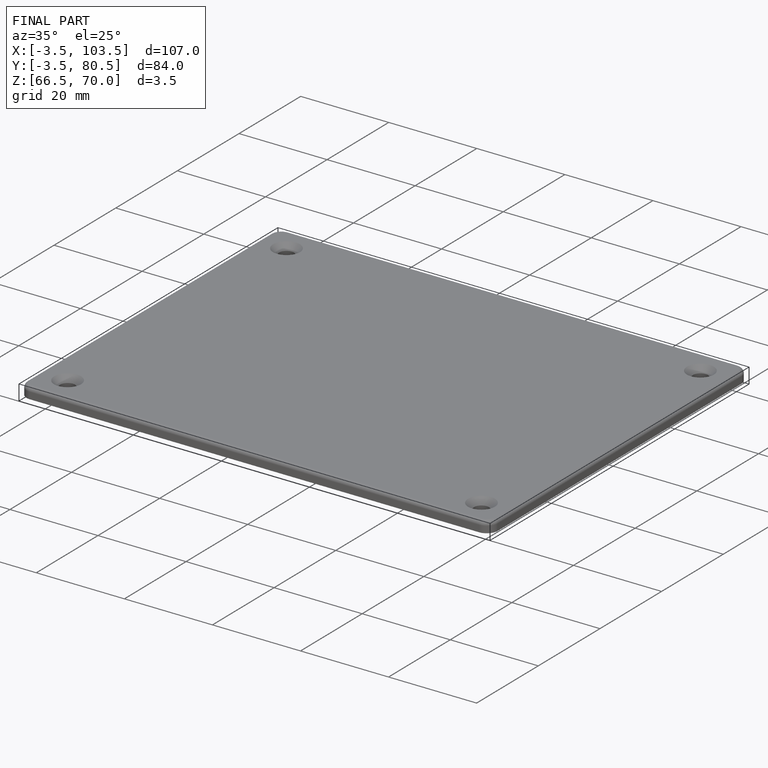
[diagram: finished part — iso view with bounding-box wireframe]
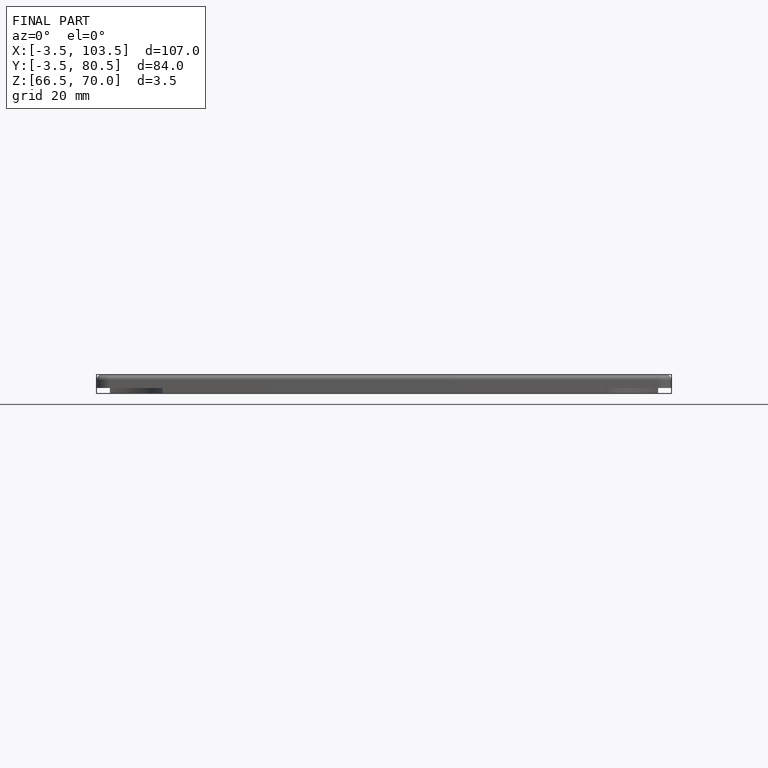
[diagram: finished part — front view with bounding-box wireframe]
